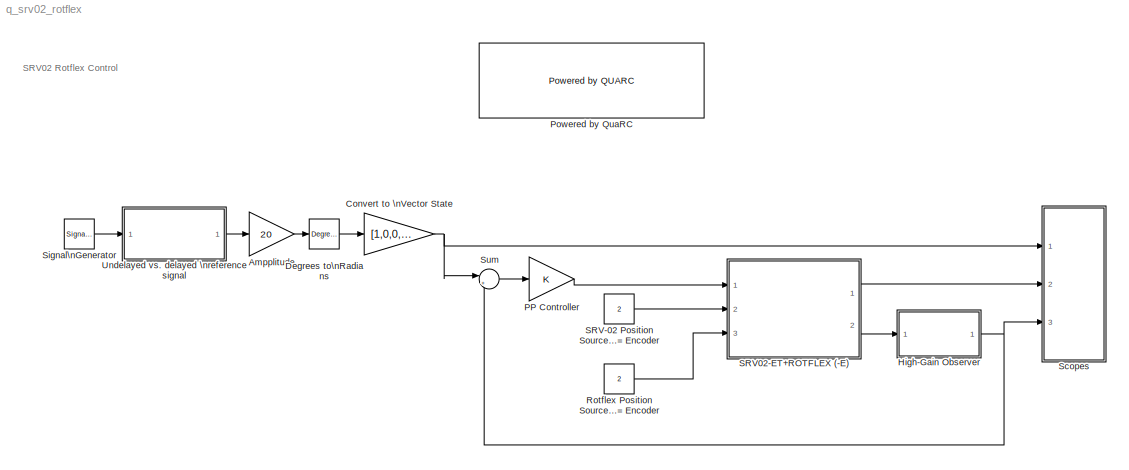
MODEL q_srv02_rotflex
KIND model
BLOCK [Gain] Ampplitude
  Gain = 20
  SID = 1
BLOCK [Gain] Convert to \nVector State
  Gain = [1,0,0,0]
  OutDataTypeStr = Inherit: Inherit via internal rule
  ParamDataTypeStr = Inherit: Inherit via internal rule
  SID = 2
  SaturateOnIntegerOverflow = off
BLOCK [Reference] Degrees to\nRadians  REF=simulink_extras/Transformations/Degrees to\nRadians
  Ports = [1, 1]
  SID = 3
  SourceBlock = simulink_extras/Transformations/Degrees to\nRadians
  SourceProductBaseCode = SL
  SourceProductName = Simulink
  SourceType = DegreesToRadians
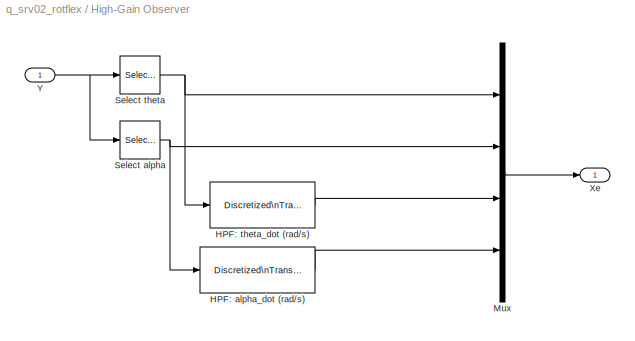
BLOCK [SubSystem] High-Gain Observer
  Ports = [1, 1]
  RequestExecContextInheritance = off
  SID = 4
  Variant = off
BLOCK [Reference] High-Gain Observer/HPF: alpha_dot (rad//s)  REF=quarc_library/Discrete/Discretized\nTransfer Function
  Ports = [1, 1]
  SID = 6
  SourceBlock = quarc_library/Discrete/Discretized\nTransfer Function
  SourceProductName = QUARC Targets
  SourceType = Discretized Transfer Function
  Ts = qc_get_step_size
  den = [1 150]
  method = tustin
  num = [150 0]
BLOCK [Reference] High-Gain Observer/HPF: theta_dot (rad//s)  REF=quarc_library/Discrete/Discretized\nTransfer Function
  Ports = [1, 1]
  SID = 7
  SourceBlock = quarc_library/Discrete/Discretized\nTransfer Function
  SourceProductName = QUARC Targets
  SourceType = Discretized Transfer Function
  Ts = qc_get_step_size
  den = [1 150]
  method = tustin
  num = [150 0]
BLOCK [Mux] High-Gain Observer/Mux
  DisplayOption = bar
  Ports = [4, 1]
  SID = 8
BLOCK [Selector] High-Gain Observer/Select alpha
  IndexOptions = Index vector (dialog)
  Indices = 2
  InputPortWidth = 2
  OutputSizes = 1
  Ports = [1, 1]
  SID = 9
BLOCK [Selector] High-Gain Observer/Select theta
  IndexOptions = Index vector (dialog)
  Indices = 1
  InputPortWidth = 2
  OutputSizes = 1
  Ports = [1, 1]
  SID = 10
BLOCK [Outport] High-Gain Observer/Xe
  IconDisplay = Port number
  SID = 11
BLOCK [Inport] High-Gain Observer/Y
  IconDisplay = Port number
  SID = 5
BLOCK [Gain] PP Controller
  Gain = K
  Multiplication = Matrix(K*u)
  SID = 12
BLOCK [Reference] Powered by QuaRC  REF=quarc_library/Logos/Powered by QUARC
  Ports = []
  SID = 13
  SourceBlock = quarc_library/Logos/Powered by QUARC
  SourceProductName = QUARC Targets
  SourceType = Powered by QUARC
BLOCK [Constant] Rotflex Position Source\n1 = Potentiometer, 2 = Encoder
  SID = 14
  Value = 2
BLOCK [Constant] SRV-02 Position Source\n1 = Potentiometer, 2 = Encoder
  SID = 15
  Value = 2
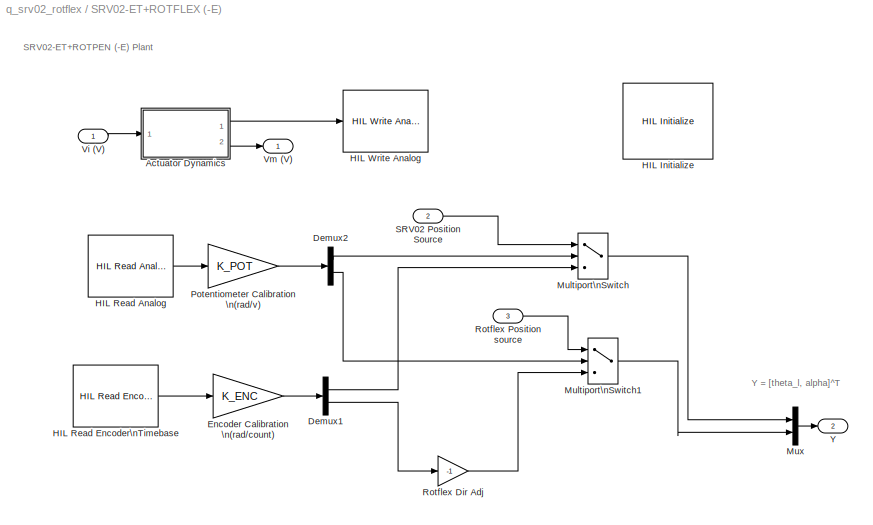
BLOCK [SubSystem] SRV02-ET+ROTFLEX (-E)
  Ports = [3, 2]
  RequestExecContextInheritance = off
  SID = 16
  Variant = off
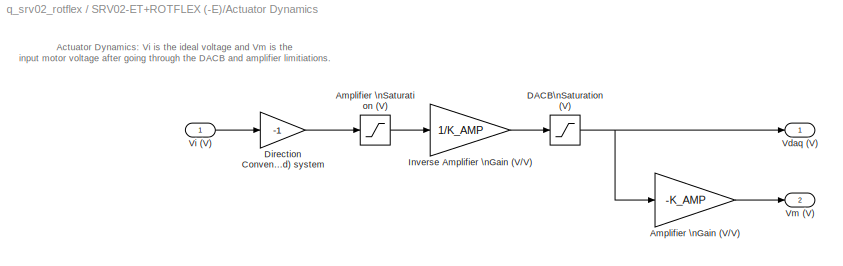
BLOCK [SubSystem] SRV02-ET+ROTFLEX (-E)/Actuator Dynamics
  Ports = [1, 2]
  RequestExecContextInheritance = off
  SID = 20
  Variant = off
BLOCK [Gain] SRV02-ET+ROTFLEX (-E)/Actuator Dynamics/Amplifier \nGain (V//V)
  Gain = -K_AMP
  OutDataTypeStr = Inherit: Inherit via internal rule
  ParamDataTypeStr = Inherit: Inherit via internal rule
  SID = 22
  SaturateOnIntegerOverflow = off
BLOCK [Saturate] SRV02-ET+ROTFLEX (-E)/Actuator Dynamics/Amplifier \nSaturation (V)
  InputPortMap = u0
  LowerLimit = -VMAX_AMP
  Ports = [1, 1]
  SID = 23
  UpperLimit = VMAX_AMP
BLOCK [Saturate] SRV02-ET+ROTFLEX (-E)/Actuator Dynamics/DACB\nSaturation (V)
  InputPortMap = u0
  LowerLimit = -VMAX_DAC
  Ports = [1, 1]
  SID = 24
  UpperLimit = VMAX_DAC
BLOCK [Gain] SRV02-ET+ROTFLEX (-E)/Actuator Dynamics/Direction Convention:\n(Right-Hand) system
  Gain = -1
  SID = 25
BLOCK [Gain] SRV02-ET+ROTFLEX (-E)/Actuator Dynamics/Inverse Amplifier \nGain (V//V)
  Gain = 1/K_AMP
  OutDataTypeStr = Inherit: Inherit via internal rule
  ParamDataTypeStr = Inherit: Inherit via internal rule
  SID = 26
  SaturateOnIntegerOverflow = off
BLOCK [Outport] SRV02-ET+ROTFLEX (-E)/Actuator Dynamics/Vdaq (V)
  IconDisplay = Port number
  SID = 27
BLOCK [Inport] SRV02-ET+ROTFLEX (-E)/Actuator Dynamics/Vi (V)
  IconDisplay = Port number
  SID = 21
BLOCK [Outport] SRV02-ET+ROTFLEX (-E)/Actuator Dynamics/Vm (V)
  IconDisplay = Port number
  Port = 2
  SID = 28
BLOCK [Demux] SRV02-ET+ROTFLEX (-E)/Demux1
  DisplayOption = bar
  Outputs = 2
  Ports = [1, 2]
  SID = 30
BLOCK [Demux] SRV02-ET+ROTFLEX (-E)/Demux2
  DisplayOption = bar
  Outputs = 2
  Ports = [1, 2]
  SID = 31
BLOCK [Gain] SRV02-ET+ROTFLEX (-E)/Encoder Calibration \n(rad//count)
  Gain = K_ENC
  SID = 32
BLOCK [Reference] SRV02-ET+ROTFLEX (-E)/HIL Initialize  REF=quarc_library/Data Acquisition/Generic/Configuration/HIL Initialize
  AttributesFormatString = (%<object_name>)
  Ports = []
  SID = 72
  SourceBlock = quarc_library/Data Acquisition/Generic/Configuration/HIL Initialize
  SourceProductName = QUARC Targets
  SourceType = HIL Initialize
  UserData = DataTag0
  UserDataPersistent = on
  active = on
  analog_input_channels = [0:1]
  analog_input_configurations = []
  analog_input_maximums = 10
  analog_input_minimums = -10
  analog_output_channels = [0:1]
  analog_output_maximums = 10
  analog_output_minimums = -10
  board_number = 0
  board_options = d0=digital;d1=digital;led=auto;update_rate=normal;decimation=1
  board_type = q2_usb
  clock_modes = []
  digital_input_channels = []
  digital_output_channels = []
  digital_output_configuration = []
  encoder_channels = [0:1]
  encoder_filter_frequency = []
  exclusive = off
  final_analog_outputs = [0]
  final_digital_outputs = [1]
  final_other_outputs = []
  final_pwm_outputs = [0]
  hardware_clocks = [0]
  initial_analog_outputs = [0]
  initial_clock_frequencies = []
  initial_digital_outputs = [1]
  initial_encoder_counts = [0]
  initial_other_outputs = []
  initial_pwm_outputs = [0]
  object_name = HIL-1
  other_output_channels = []
  pwm_alignment = []
  pwm_channels = []
  pwm_configuration = []
  pwm_frequency = 1/0.020
  pwm_leading_deadband = []
  pwm_modes = [0]
  pwm_polarity = []
  pwm_trailing_deadband = []
  quadrature = [4]
  set_analog_input_params_at_start = on
  set_analog_input_params_at_switch_in = off
  set_analog_output_params_at_start = on
  set_analog_output_params_at_switch_in = off
  set_analog_outputs_at_start = on
  set_analog_outputs_at_switch_in = off
  set_analog_outputs_at_switch_out = off
  set_analog_outputs_at_terminate = on
  set_analog_outputs_on_watchdog = off
  set_clock_frequencies_at_start = off
  set_clock_frequencies_at_switch_in = off
  set_clock_params_at_start = off
  set_clock_params_at_switch_in = off
  set_digital_output_params_at_start = off
  set_digital_output_params_at_switch_in = off
  set_digital_outputs_at_start = on
  set_digital_outputs_at_switch_in = off
  set_digital_outputs_at_switch_out = off
  set_digital_outputs_at_terminate = on
  set_digital_outputs_on_watchdog = off
  set_encoder_counts_at_start = on
  set_encoder_counts_at_switch_in = off
  set_encoder_params_at_start = on
  set_encoder_params_at_switch_in = off
  set_other_outputs_at_start = off
  set_other_outputs_at_switch_in = off
  set_other_outputs_at_switch_out = off
  set_other_outputs_at_terminate = off
  set_other_outputs_on_watchdog = off
  set_pwm_outputs_at_start = on
  set_pwm_outputs_at_switch_in = off
  set_pwm_outputs_at_switch_out = off
  set_pwm_outputs_at_terminate = on
  set_pwm_outputs_on_watchdog = off
  set_pwm_params_at_start = on
  set_pwm_params_at_switch_in = off
  watchdog_analog_outputs = 0
  watchdog_digital_outputs = [1]
  watchdog_other_outputs = []
  watchdog_pwm_outputs = [0]
BLOCK [Reference] SRV02-ET+ROTFLEX (-E)/HIL Read Analog  REF=quarc_library/Data Acquisition/Generic/Immediate I//O/HIL Read Analog
  AttributesFormatString = (%<object_name>)
  Ports = [0, 1]
  SID = 34
  SourceBlock = quarc_library/Data Acquisition/Generic/Immediate I//O/HIL Read Analog
  SourceProductName = QUARC Targets
  SourceType = HIL Read Analog
  UserData = DataTag1
  UserDataPersistent = on
  active = on
  channels = 0:1
  object_name = HIL-1
  sample_time = qc_get_step_size
  vector_output = on
BLOCK [Reference] SRV02-ET+ROTFLEX (-E)/HIL Read Encoder\nTimebase  REF=quarc_library/Data Acquisition/Generic/Timebases/HIL Read Encoder\nTimebase
  AttributesFormatString = (%<object_name>)
  Ports = [0, 1]
  SID = 35
  SourceBlock = quarc_library/Data Acquisition/Generic/Timebases/HIL Read Encoder\nTimebase
  SourceProductName = QUARC Targets
  SourceType = HIL Read Encoder Timebase
  UserData = DataTag2
  UserDataPersistent = on
  active = on
  channels = 0:1
  clock = 0
  data_type = double
  data_type_mode = Inherit via back propagation
  object_name = HIL-1
  samples_in_buffer = max(ceil(1/qc_get_step_size), 1)
  vector_output = on
BLOCK [Reference] SRV02-ET+ROTFLEX (-E)/HIL Write Analog  REF=quarc_library/Data Acquisition/Generic/Immediate I//O/HIL Write Analog
  AttributesFormatString = (%<object_name>)
  Ports = [1]
  SID = 36
  SourceBlock = quarc_library/Data Acquisition/Generic/Immediate I//O/HIL Write Analog
  SourceProductName = QUARC Targets
  SourceType = HIL Write Analog
  UserData = DataTag3
  UserDataPersistent = on
  active = off
  channels = 0
  object_name = HIL-1
  sample_time = -1
  vector_input = off
BLOCK [MultiPortSwitch] SRV02-ET+ROTFLEX (-E)/Multiport\nSwitch
  InputSameDT = off
  Inputs = 2
  Ports = [3, 1]
  SID = 37
  SaturateOnIntegerOverflow = off
BLOCK [MultiPortSwitch] SRV02-ET+ROTFLEX (-E)/Multiport\nSwitch1
  InputSameDT = off
  Inputs = 2
  Ports = [3, 1]
  SID = 38
  SaturateOnIntegerOverflow = off
BLOCK [Mux] SRV02-ET+ROTFLEX (-E)/Mux
  DisplayOption = bar
  Inputs = 2
  Ports = [2, 1]
  SID = 39
BLOCK [Gain] SRV02-ET+ROTFLEX (-E)/Potentiometer Calibration \n(rad//v)
  Gain = K_POT
  SID = 40
BLOCK [Gain] SRV02-ET+ROTFLEX (-E)/Rotflex Dir Adj
  Gain = -1
  OutDataTypeStr = Inherit: Inherit via internal rule
  ParamDataTypeStr = Inherit: Inherit via internal rule
  SID = 41
  SaturateOnIntegerOverflow = off
BLOCK [Inport] SRV02-ET+ROTFLEX (-E)/Rotflex Position source
  IconDisplay = Port number
  Port = 3
  SID = 19
BLOCK [Inport] SRV02-ET+ROTFLEX (-E)/SRV02 Position Source
  IconDisplay = Port number
  Port = 2
  SID = 18
BLOCK [Inport] SRV02-ET+ROTFLEX (-E)/Vi (V)
  IconDisplay = Port number
  SID = 17
BLOCK [Outport] SRV02-ET+ROTFLEX (-E)/Vm (V)
  IconDisplay = Port number
  InitialOutput = 0
  SID = 42
BLOCK [Outport] SRV02-ET+ROTFLEX (-E)/Y
  IconDisplay = Port number
  InitialOutput = 0
  Port = 2
  SID = 43
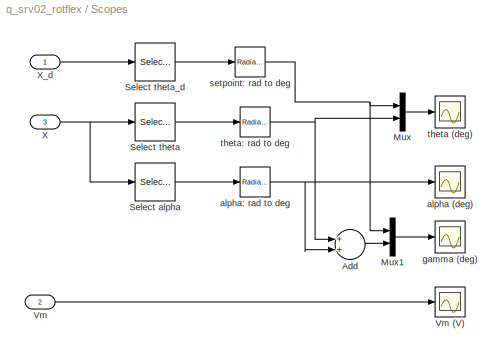
BLOCK [SubSystem] Scopes
  Ports = [3]
  RequestExecContextInheritance = off
  SID = 46
  Variant = off
BLOCK [Sum] Scopes/Add
  InputSameDT = off
  OutDataTypeStr = Inherit: Inherit via internal rule
  Ports = [2, 1]
  SID = 50
  SaturateOnIntegerOverflow = off
BLOCK [Mux] Scopes/Mux
  DisplayOption = bar
  Inputs = 2
  Ports = [2, 1]
  SID = 51
BLOCK [Mux] Scopes/Mux1
  DisplayOption = bar
  Inputs = 2
  Ports = [2, 1]
  SID = 52
BLOCK [Selector] Scopes/Select alpha
  IndexOptions = Index vector (dialog)
  Indices = 2
  InputPortWidth = 4
  OutputSizes = 1
  Ports = [1, 1]
  SID = 53
BLOCK [Selector] Scopes/Select theta
  IndexOptions = Index vector (dialog)
  Indices = 1
  InputPortWidth = 4
  OutputSizes = 1
  Ports = [1, 1]
  SID = 54
BLOCK [Selector] Scopes/Select theta_d
  IndexOptions = Index vector (dialog)
  Indices = 1
  InputPortWidth = 4
  OutputSizes = 1
  Ports = [1, 1]
  SID = 55
BLOCK [Inport] Scopes/Vm
  IconDisplay = Port number
  Port = 2
  SID = 48
BLOCK [Scope] Scopes/Vm (V)
  NumInputPorts = 1
  Ports = [1]
  SID = 56
  ScopeSpecificationString = C++SS(StrPVP('Location','[5, 52, 1925, 1049]'),StrPVP('Open','off'),StrPVP('TickLabels','on'),MxPVP('AxesTitles',53,'struct(''axes1'',''%<SignalLabel>'')'),StrPVP('TimeRange','25'),StrPVP('SaveToWorkspace','on'),StrPVP('SaveName','data_vm'),StrPVP('DataFormat','Array'),StrPVP('LimitDataPoints','off'),StrPVP('BlockParamSampleTime','0'),StrPVP('Decimation','1'),StrPVP('BlockParamSampleInput','off'))
BLOCK [Inport] Scopes/X
  IconDisplay = Port number
  Port = 3
  SID = 49
BLOCK [Inport] Scopes/X_d
  IconDisplay = Port number
  SID = 47
BLOCK [Scope] Scopes/alpha (deg)
  NumInputPorts = 1
  Ports = [1]
  SID = 57
  ScopeSpecificationString = C++SS(StrPVP('Location','[1589, 533, 1915, 812]'),StrPVP('Open','off'),MxPVP('AxesTitles',53,'struct(''axes1'',''%<SignalLabel>'')'),StrPVP('TimeRange','25'),StrPVP('YMin','-1'),StrPVP('YMax','1'),StrPVP('SaveToWorkspace','on'),StrPVP('SaveName','data_alpha'),StrPVP('DataFormat','Array'),StrPVP('LimitDataPoints','off'),StrPVP('BlockParamSampleTime','0'),StrPVP('Decimation','1'),StrPVP('BlockParamS...<+19ch>
BLOCK [Reference] Scopes/alpha: rad to deg  REF=simulink_extras/Transformations/Radians\nto Degrees
  Ports = [1, 1]
  SID = 58
  SourceBlock = simulink_extras/Transformations/Radians\nto Degrees
  SourceProductBaseCode = SL
  SourceProductName = Simulink
  SourceType = RadiansToDegrees
BLOCK [Scope] Scopes/gamma (deg)
  NumInputPorts = 1
  Ports = [1]
  SID = 59
  ScopeSpecificationString = C++SS(StrPVP('Location','[833, 270, 1915, 760]'),StrPVP('Open','off'),MxPVP('AxesTitles',53,'struct(''axes1'',''%<SignalLabel>'')'),StrPVP('TimeRange','25'),StrPVP('YMin','-40'),StrPVP('YMax','40'),StrPVP('SaveToWorkspace','on'),StrPVP('SaveName','data_gamma'),StrPVP('DataFormat','Array'),StrPVP('LimitDataPoints','off'),StrPVP('BlockParamSampleTime','0'),StrPVP('Decimation','1'),StrPVP('BlockParam...<+20ch>
BLOCK [Reference] Scopes/setpoint: rad to deg  REF=simulink_extras/Transformations/Radians\nto Degrees
  Ports = [1, 1]
  SID = 60
  SourceBlock = simulink_extras/Transformations/Radians\nto Degrees
  SourceProductBaseCode = SL
  SourceProductName = Simulink
  SourceType = RadiansToDegrees
BLOCK [Scope] Scopes/theta (deg)
  NumInputPorts = 1
  Ports = [1]
  SID = 61
  ScopeSpecificationString = C++SS(StrPVP('Location','[1921, 52, 3841, 1079]'),StrPVP('Open','off'),MxPVP('AxesTitles',53,'struct(''axes1'',''%<SignalLabel>'')'),StrPVP('TimeRange','25'),StrPVP('YMin','-50'),StrPVP('YMax','50'),StrPVP('SaveToWorkspace','on'),StrPVP('SaveName','data_theta'),StrPVP('DataFormat','Array'),StrPVP('LimitDataPoints','off'),StrPVP('BlockParamSampleTime','0'),StrPVP('Decimation','1'),StrPVP('BlockPara...<+21ch>
BLOCK [Reference] Scopes/theta: rad to deg  REF=simulink_extras/Transformations/Radians\nto Degrees
  Ports = [1, 1]
  SID = 62
  SourceBlock = simulink_extras/Transformations/Radians\nto Degrees
  SourceProductBaseCode = SL
  SourceProductName = Simulink
  SourceType = RadiansToDegrees
BLOCK [SignalGenerator] Signal\nGenerator
  Frequency = 0.3
  Ports = [0, 1]
  SID = 63
  WaveForm = square
BLOCK [Sum] Sum
  IconShape = round
  InputSameDT = off
  Inputs = |+-
  OutDataTypeStr = Inherit: Inherit via internal rule
  Ports = [2, 1]
  SID = 64
  SaturateOnIntegerOverflow = off
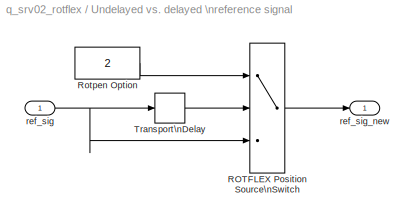
BLOCK [SubSystem] Undelayed vs. delayed \nreference signal 
  Ports = [1, 1]
  RequestExecContextInheritance = off
  SID = 65
  Variant = off
BLOCK [MultiPortSwitch] Undelayed vs. delayed \nreference signal /ROTFLEX Position Source\nSwitch
  DataPortOrder = Zero-based contiguous
  InputSameDT = off
  Inputs = 2
  Ports = [3, 1]
  SID = 67
  SaturateOnIntegerOverflow = off
  zeroidx = on
BLOCK [Constant] Undelayed vs. delayed \nreference signal /Rotpen Option
  SID = 68
  Value = 2
BLOCK [TransportDelay] Undelayed vs. delayed \nreference signal /Transport\nDelay
  DelayTime = 0.1
  Ports = [1, 1]
  SID = 69
BLOCK [Inport] Undelayed vs. delayed \nreference signal /ref_sig
  IconDisplay = Port number
  SID = 66
BLOCK [Outport] Undelayed vs. delayed \nreference signal /ref_sig_new
  IconDisplay = Port number
  SID = 70
ANNOTATION (root): SRV02 Rotflex Control
ANNOTATION SRV02-ET+ROTFLEX (-E): SRV02-ET+ROTPEN (-E) Plant
ANNOTATION SRV02-ET+ROTFLEX (-E): Y = [theta_l, alpha]^T
ANNOTATION SRV02-ET+ROTFLEX (-E)/Actuator Dynamics: Actuator Dynamics: Vi is the ideal voltage and Vm is the \ninput motor voltage after going through the DACB and amplifier limitiations.
LINE Ampplitude:1 -> Degrees to\nRadians:1
NET Convert to \nVector State:1 -> Scopes:1, Sum:1
LINE Degrees to\nRadians:1 -> Convert to \nVector State:1
LINE High-Gain Observer/HPF: alpha_dot (rad//s):1 -> High-Gain Observer/Mux:4
LINE High-Gain Observer/HPF: theta_dot (rad//s):1 -> High-Gain Observer/Mux:3
LINE High-Gain Observer/Mux:1 -> High-Gain Observer/Xe:1
NET High-Gain Observer/Select alpha:1 -> High-Gain Observer/HPF: alpha_dot (rad//s):1, High-Gain Observer/Mux:2
NET High-Gain Observer/Select theta:1 -> High-Gain Observer/HPF: theta_dot (rad//s):1, High-Gain Observer/Mux:1
NET High-Gain Observer/Y:1 -> High-Gain Observer/Select alpha:1, High-Gain Observer/Select theta:1
NET High-Gain Observer:1 -> Scopes:3, Sum:2
LINE PP Controller:1 -> SRV02-ET+ROTFLEX (-E):1
LINE Rotflex Position Source\n1 = Potentiometer, 2 = Encoder:1 -> SRV02-ET+ROTFLEX (-E):3
LINE SRV-02 Position Source\n1 = Potentiometer, 2 = Encoder:1 -> SRV02-ET+ROTFLEX (-E):2
LINE SRV02-ET+ROTFLEX (-E)/Actuator Dynamics/Amplifier \nGain (V//V):1 -> SRV02-ET+ROTFLEX (-E)/Actuator Dynamics/Vm (V):1
LINE SRV02-ET+ROTFLEX (-E)/Actuator Dynamics/Amplifier \nSaturation (V):1 -> SRV02-ET+ROTFLEX (-E)/Actuator Dynamics/Inverse Amplifier \nGain (V//V):1
NET SRV02-ET+ROTFLEX (-E)/Actuator Dynamics/DACB\nSaturation (V):1 -> SRV02-ET+ROTFLEX (-E)/Actuator Dynamics/Amplifier \nGain (V//V):1, SRV02-ET+ROTFLEX (-E)/Actuator Dynamics/Vdaq (V):1
LINE SRV02-ET+ROTFLEX (-E)/Actuator Dynamics/Direction Convention:\n(Right-Hand) system:1 -> SRV02-ET+ROTFLEX (-E)/Actuator Dynamics/Amplifier \nSaturation (V):1
LINE SRV02-ET+ROTFLEX (-E)/Actuator Dynamics/Inverse Amplifier \nGain (V//V):1 -> SRV02-ET+ROTFLEX (-E)/Actuator Dynamics/DACB\nSaturation (V):1
LINE SRV02-ET+ROTFLEX (-E)/Actuator Dynamics/Vi (V):1 -> SRV02-ET+ROTFLEX (-E)/Actuator Dynamics/Direction Convention:\n(Right-Hand) system:1
LINE SRV02-ET+ROTFLEX (-E)/Actuator Dynamics:1 -> SRV02-ET+ROTFLEX (-E)/HIL Write Analog:1
LINE SRV02-ET+ROTFLEX (-E)/Actuator Dynamics:2 -> SRV02-ET+ROTFLEX (-E)/Vm (V):1
LINE SRV02-ET+ROTFLEX (-E)/Demux1:1 -> SRV02-ET+ROTFLEX (-E)/Multiport\nSwitch:3
LINE SRV02-ET+ROTFLEX (-E)/Demux1:2 -> SRV02-ET+ROTFLEX (-E)/Rotflex Dir Adj:1
LINE SRV02-ET+ROTFLEX (-E)/Demux2:1 -> SRV02-ET+ROTFLEX (-E)/Multiport\nSwitch:2
LINE SRV02-ET+ROTFLEX (-E)/Demux2:2 -> SRV02-ET+ROTFLEX (-E)/Multiport\nSwitch1:2
LINE SRV02-ET+ROTFLEX (-E)/Encoder Calibration \n(rad//count):1 -> SRV02-ET+ROTFLEX (-E)/Demux1:1
LINE SRV02-ET+ROTFLEX (-E)/HIL Read Analog:1 -> SRV02-ET+ROTFLEX (-E)/Potentiometer Calibration \n(rad//v):1
LINE SRV02-ET+ROTFLEX (-E)/HIL Read Encoder\nTimebase:1 -> SRV02-ET+ROTFLEX (-E)/Encoder Calibration \n(rad//count):1
LINE SRV02-ET+ROTFLEX (-E)/Multiport\nSwitch1:1 -> SRV02-ET+ROTFLEX (-E)/Mux:2
LINE SRV02-ET+ROTFLEX (-E)/Multiport\nSwitch:1 -> SRV02-ET+ROTFLEX (-E)/Mux:1
LINE SRV02-ET+ROTFLEX (-E)/Mux:1 -> SRV02-ET+ROTFLEX (-E)/Y:1
LINE SRV02-ET+ROTFLEX (-E)/Potentiometer Calibration \n(rad//v):1 -> SRV02-ET+ROTFLEX (-E)/Demux2:1
LINE SRV02-ET+ROTFLEX (-E)/Rotflex Dir Adj:1 -> SRV02-ET+ROTFLEX (-E)/Multiport\nSwitch1:3
LINE SRV02-ET+ROTFLEX (-E)/Rotflex Position source:1 -> SRV02-ET+ROTFLEX (-E)/Multiport\nSwitch1:1
LINE SRV02-ET+ROTFLEX (-E)/SRV02 Position Source:1 -> SRV02-ET+ROTFLEX (-E)/Multiport\nSwitch:1
LINE SRV02-ET+ROTFLEX (-E)/Vi (V):1 -> SRV02-ET+ROTFLEX (-E)/Actuator Dynamics:1
LINE SRV02-ET+ROTFLEX (-E):1 -> Scopes:2
LINE SRV02-ET+ROTFLEX (-E):2 -> High-Gain Observer:1
LINE Scopes/Add:1 -> Scopes/Mux1:2
LINE Scopes/Mux1:1 -> Scopes/gamma (deg):1
LINE Scopes/Mux:1 -> Scopes/theta (deg):1
LINE Scopes/Select alpha:1 -> Scopes/alpha: rad to deg:1
LINE Scopes/Select theta:1 -> Scopes/theta: rad to deg:1
LINE Scopes/Select theta_d:1 -> Scopes/setpoint: rad to deg:1
LINE Scopes/Vm:1 -> Scopes/Vm (V):1
NET Scopes/X:1 -> Scopes/Select alpha:1, Scopes/Select theta:1
LINE Scopes/X_d:1 -> Scopes/Select theta_d:1
NET Scopes/alpha: rad to deg:1 -> Scopes/Add:2, Scopes/alpha (deg):1
NET Scopes/setpoint: rad to deg:1 -> Scopes/Mux1:1, Scopes/Mux:1
NET Scopes/theta: rad to deg:1 -> Scopes/Add:1, Scopes/Mux:2
LINE Signal\nGenerator:1 -> Undelayed vs. delayed \nreference signal :1
LINE Sum:1 -> PP Controller:1
LINE Undelayed vs. delayed \nreference signal /ROTFLEX Position Source\nSwitch:1 -> Undelayed vs. delayed \nreference signal /ref_sig_new:1
LINE Undelayed vs. delayed \nreference signal /Rotpen Option:1 -> Undelayed vs. delayed \nreference signal /ROTFLEX Position Source\nSwitch:1
LINE Undelayed vs. delayed \nreference signal /Transport\nDelay:1 -> Undelayed vs. delayed \nreference signal /ROTFLEX Position Source\nSwitch:2
NET Undelayed vs. delayed \nreference signal /ref_sig:1 -> Undelayed vs. delayed \nreference signal /ROTFLEX Position Source\nSwitch:3, Undelayed vs. delayed \nreference signal /Transport\nDelay:1
LINE Undelayed vs. delayed \nreference signal :1 -> Ampplitude:1
note: NET lines group one-source signal fan-out (src -> all destinations, sorted); 1:1 wires keep LINE
